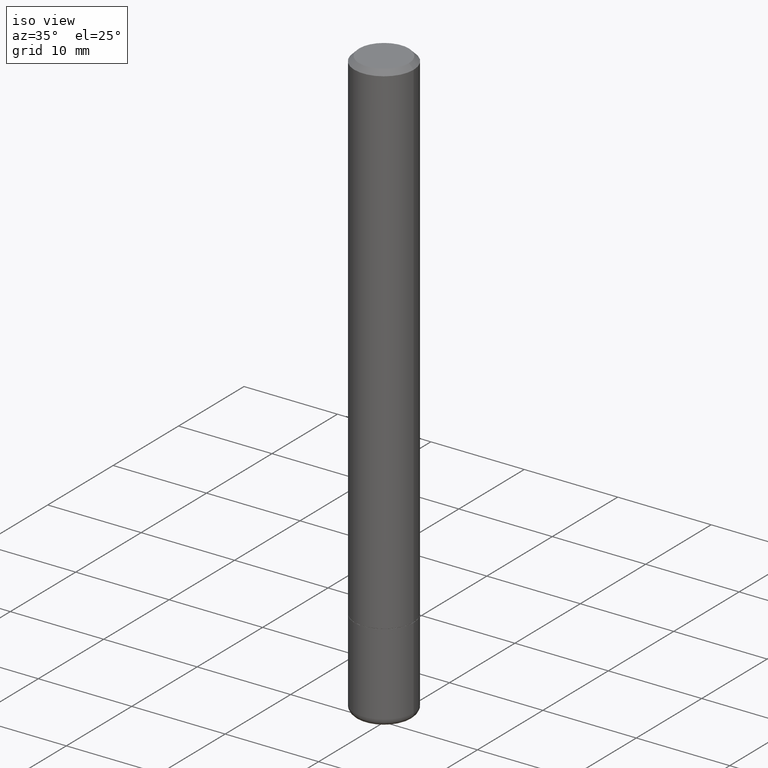
[diagram: clean part render]
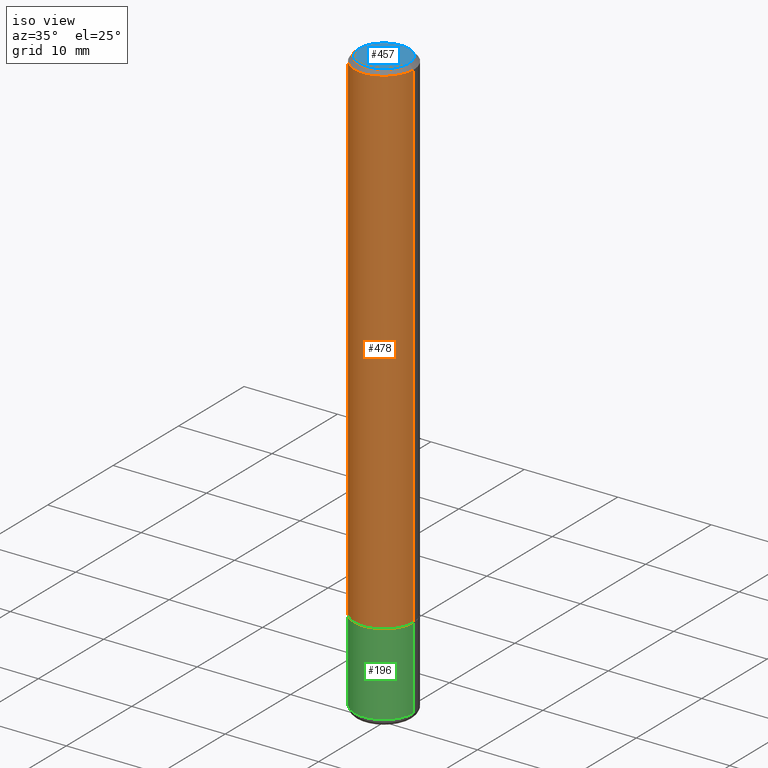
[diagram: same view with three faces highlighted in distinct colors, each labeled with its STEP entity id]
A machine part, iso view with three faces highlighted in distinct colors.
Their STEP definitions:

[orange] entity #478 — the highlighted cylindrical surface (edge-blend (fillet) strip) has radius 3.175 mm, axis along (-0, 0, 1).
#49 = CIRCLE ( 'NONE', #230, 0.1249999999999992090 ) ;
#93 = CYLINDRICAL_SURFACE ( 'NONE', #198, 0.1249999999999993477 ) ;
#103 = EDGE_CURVE ( 'NONE', #464, #153, #475, .T. ) ;
#133 = CARTESIAN_POINT ( 'NONE',  ( 0.000000000000000000, 0.000000000000000000, 0.000000000000000000 ) ) ;
#148 = ORIENTED_EDGE ( 'NONE', *, *, #380, .F. ) ;
#149 = ORIENTED_EDGE ( 'NONE', *, *, #103, .T. ) ;
#153 = VERTEX_POINT ( 'NONE', #235 ) ;
#154 = DIRECTION ( 'NONE',  ( -2.445468806185136597E-29, 3.491481338843145583E-15, 1.000000000000000000 ) ) ;
#161 = CARTESIAN_POINT ( 'NONE',  ( 4.890937612370296805E-31, -6.982962677686323656E-17, -0.02000000000000009409 ) ) ;
#172 = DIRECTION ( 'NONE',  ( 1.000000000000000000, -6.982962677686265922E-15, 4.876176775795935793E-29 ) ) ;
#173 = CARTESIAN_POINT ( 'NONE',  ( 0.1249999999999992090, -9.273918764982992215E-16, -0.02000000000000009409 ) ) ;
#198 = AXIS2_PLACEMENT_3D ( 'NONE', #133, #358, #172 ) ;
#207 = VECTOR ( 'NONE', #432, 39.37007874015748143 ) ;
#221 = EDGE_CURVE ( 'NONE', #312, #369, #49, .T. ) ;
#230 = AXIS2_PLACEMENT_3D ( 'NONE', #161, #241, #311 ) ;
#235 = CARTESIAN_POINT ( 'NONE',  ( 0.1249999999999994865, -8.288776698413622377E-15, -2.124000000000000110 ) ) ;
#241 = DIRECTION ( 'NONE',  ( -2.445468806185136597E-29, 3.491481338843145583E-15, 1.000000000000000000 ) ) ;
#269 = EDGE_CURVE ( 'NONE', #153, #369, #392, .T. ) ;
#285 = CARTESIAN_POINT ( 'NONE',  ( 0.1249999999999993477, -8.728703347107787043E-16, 6.095220969744888212E-30 ) ) ;
#292 = CARTESIAN_POINT ( 'NONE',  ( -0.1249999999999994865, -2.854689575539726725E-15, -2.124000000000000110 ) ) ;
#311 = DIRECTION ( 'NONE',  ( 1.000000000000000000, -6.982962677686267499E-15, 0.000000000000000000 ) ) ;
#312 = VERTEX_POINT ( 'NONE', #463 ) ;
#327 = EDGE_LOOP ( 'NONE', ( #148, #149, #486, #444 ) ) ;
#336 = LINE ( 'NONE', #482, #489 ) ;
#347 = DIRECTION ( 'NONE',  ( 1.000000000000000000, -6.982962677686268288E-15, 0.000000000000000000 ) ) ;
#358 = DIRECTION ( 'NONE',  ( -2.445468806185136597E-29, 3.491481338843145583E-15, 1.000000000000000000 ) ) ;
#369 = VERTEX_POINT ( 'NONE', #173 ) ;
#371 = CARTESIAN_POINT ( 'NONE',  ( 5.194175744337230786E-29, -7.415906363702842194E-15, -2.124000000000000110 ) ) ;
#380 = EDGE_CURVE ( 'NONE', #464, #312, #336, .T. ) ;
#392 = LINE ( 'NONE', #285, #207 ) ;
#399 = FACE_OUTER_BOUND ( 'NONE', #327, .T. ) ;
#413 = AXIS2_PLACEMENT_3D ( 'NONE', #371, #154, #347 ) ;
#432 = DIRECTION ( 'NONE',  ( -2.445468806185136877E-29, 3.491481338843145188E-15, 1.000000000000000000 ) ) ;
#444 = ORIENTED_EDGE ( 'NONE', *, *, #221, .F. ) ;
#463 = CARTESIAN_POINT ( 'NONE',  ( -0.1249999999999992090, 8.030407079339147158E-16, -0.02000000000000009409 ) ) ;
#464 = VERTEX_POINT ( 'NONE', #292 ) ;
#474 = DIRECTION ( 'NONE',  ( -2.445468806185136877E-29, 3.491481338843145188E-15, 1.000000000000000000 ) ) ;
#475 = CIRCLE ( 'NONE', #413, 0.1249999999999994865 ) ;
#478 = ADVANCED_FACE ( 'NONE', ( #399 ), #93, .T. ) ;
#482 = CARTESIAN_POINT ( 'NONE',  ( -0.1249999999999993477, 8.881784197001205978E-16, -6.148668862818600698E-30 ) ) ;
#486 = ORIENTED_EDGE ( 'NONE', *, *, #269, .T. ) ;
#489 = VECTOR ( 'NONE', #474, 39.37007874015748143 ) ;

[blue] entity #457 — the highlighted planar face has unit normal (0, -0, -1).
#30 = DIRECTION ( 'NONE',  ( -1.000000000000000000, 6.982962677686265922E-15, -4.876176775795935793E-29 ) ) ;
#33 = CARTESIAN_POINT ( 'NONE',  ( 1.148236555768741665E-45, -1.639377487418492057E-31, -4.695363739110452099E-17 ) ) ;
#46 = VERTEX_POINT ( 'NONE', #119 ) ;
#51 = DIRECTION ( 'NONE',  ( -2.445468806185136597E-29, 3.491481338843145583E-15, 1.000000000000000000 ) ) ;
#57 = CARTESIAN_POINT ( 'NONE',  ( 1.148236555768741665E-45, -1.639377487418492057E-31, -4.695363739110452099E-17 ) ) ;
#108 = VERTEX_POINT ( 'NONE', #310 ) ;
#119 = CARTESIAN_POINT ( 'NONE',  ( 0.1049999999999992190, -8.238720831321523396E-16, -4.695363739109907908E-17 ) ) ;
#121 = AXIS2_PLACEMENT_3D ( 'NONE', #57, #51, #244 ) ;
#139 = CARTESIAN_POINT ( 'NONE',  ( 7.332110811570524037E-16, 0.1049999999999992190, -3.900823592740798305E-16 ) ) ;
#140 = DIRECTION ( 'NONE',  ( 1.000000000000000000, -6.982962677686267499E-15, 4.874400871621274649E-29 ) ) ;
#189 = EDGE_CURVE ( 'NONE', #108, #46, #192, .T. ) ;
#192 = CIRCLE ( 'NONE', #121, 0.1049999999999992190 ) ;
#218 = EDGE_LOOP ( 'NONE', ( #314, #265 ) ) ;
#244 = DIRECTION ( 'NONE',  ( 1.000000000000000000, -6.982962677686267499E-15, 4.874400871621274649E-29 ) ) ;
#252 = DIRECTION ( 'NONE',  ( -2.445468806185136597E-29, 3.491481338843145583E-15, 1.000000000000000000 ) ) ;
#265 = ORIENTED_EDGE ( 'NONE', *, *, #408, .T. ) ;
#290 = AXIS2_PLACEMENT_3D ( 'NONE', #139, #447, #30 ) ;
#296 = FACE_OUTER_BOUND ( 'NONE', #218, .T. ) ;
#305 = AXIS2_PLACEMENT_3D ( 'NONE', #33, #252, #140 ) ;
#310 = CARTESIAN_POINT ( 'NONE',  ( -0.1049999999999992190, 7.681258945454834611E-16, -4.695363739110977184E-17 ) ) ;
#314 = ORIENTED_EDGE ( 'NONE', *, *, #189, .T. ) ;
#331 = PLANE ( 'NONE',  #290 ) ;
#408 = EDGE_CURVE ( 'NONE', #46, #108, #459, .T. ) ;
#447 = DIRECTION ( 'NONE',  ( 2.438088387897960049E-29, -3.491481338843145188E-15, -1.000000000000000000 ) ) ;
#457 = ADVANCED_FACE ( 'NONE', ( #296 ), #331, .F. ) ;
#459 = CIRCLE ( 'NONE', #305, 0.1049999999999992190 ) ;

[green] entity #196 — the highlighted cylindrical surface (edge-blend (fillet) strip) has radius 3.175 mm, axis along (-0, 0, 1).
#10 = EDGE_CURVE ( 'NONE', #141, #55, #275, .T. ) ;
#14 = ORIENTED_EDGE ( 'NONE', *, *, #78, .F. ) ;
#24 = CARTESIAN_POINT ( 'NONE',  ( 0.000000000000000000, 0.000000000000000000, 0.000000000000000000 ) ) ;
#28 = VERTEX_POINT ( 'NONE', #307 ) ;
#50 = AXIS2_PLACEMENT_3D ( 'NONE', #273, #197, #348 ) ;
#55 = VERTEX_POINT ( 'NONE', #85 ) ;
#60 = EDGE_CURVE ( 'NONE', #141, #398, #111, .T. ) ;
#78 = EDGE_CURVE ( 'NONE', #55, #28, #284, .T. ) ;
#85 = CARTESIAN_POINT ( 'NONE',  ( -0.1249999999999995559, -7.133501950465667053E-15, -2.125000000000000000 ) ) ;
#99 = CARTESIAN_POINT ( 'NONE',  ( 0.1249999999999997918, -8.728703347107818597E-16, 6.095220969744909231E-30 ) ) ;
#111 = CIRCLE ( 'NONE', #50, 0.1250000000000000278 ) ;
#130 = DIRECTION ( 'NONE',  ( -2.445468806185136597E-29, 3.491481338843145583E-15, 1.000000000000000000 ) ) ;
#141 = VERTEX_POINT ( 'NONE', #456 ) ;
#155 = CARTESIAN_POINT ( 'NONE',  ( 5.196621213143415268E-29, -7.419397845041685201E-15, -2.125000000000000000 ) ) ;
#158 = DIRECTION ( 'NONE',  ( -2.445468806185136597E-29, 3.491481338843145583E-15, 1.000000000000000000 ) ) ;
#183 = ORIENTED_EDGE ( 'NONE', *, *, #210, .T. ) ;
#187 = AXIS2_PLACEMENT_3D ( 'NONE', #24, #130, #325 ) ;
#191 = DIRECTION ( 'NONE',  ( -2.445468806185136877E-29, 3.491481338843145188E-15, 1.000000000000000000 ) ) ;
#196 = ADVANCED_FACE ( 'NONE', ( #205 ), #360, .T. ) ;
#197 = DIRECTION ( 'NONE',  ( -2.445468806185136597E-29, 3.491481338843145583E-15, 1.000000000000000000 ) ) ;
#205 = FACE_OUTER_BOUND ( 'NONE', #259, .T. ) ;
#210 = EDGE_CURVE ( 'NONE', #398, #28, #462, .T. ) ;
#225 = VECTOR ( 'NONE', #356, 39.37007874015748143 ) ;
#259 = EDGE_LOOP ( 'NONE', ( #446, #282, #183, #14 ) ) ;
#273 = CARTESIAN_POINT ( 'NONE',  ( 6.040310744756052718E-29, -8.623962895289896214E-15, -2.470001142308074993 ) ) ;
#275 = LINE ( 'NONE', #454, #361 ) ;
#282 = ORIENTED_EDGE ( 'NONE', *, *, #60, .T. ) ;
#284 = CIRCLE ( 'NONE', #411, 0.1249999999999995559 ) ;
#307 = CARTESIAN_POINT ( 'NONE',  ( 0.1249999999999995559, -8.292268179752463807E-15, -2.125000000000000000 ) ) ;
#325 = DIRECTION ( 'NONE',  ( 1.000000000000000000, -6.982962677686266711E-15, 4.876176775795935232E-29 ) ) ;
#345 = DIRECTION ( 'NONE',  ( 1.000000000000000000, -6.982962677686264344E-15, 0.000000000000000000 ) ) ;
#348 = DIRECTION ( 'NONE',  ( 1.000000000000000000, -6.982962677686261189E-15, 0.000000000000000000 ) ) ;
#356 = DIRECTION ( 'NONE',  ( -2.445468806185136877E-29, 3.491481338843145188E-15, 1.000000000000000000 ) ) ;
#360 = CYLINDRICAL_SURFACE ( 'NONE', #187, 0.1249999999999997918 ) ;
#361 = VECTOR ( 'NONE', #191, 39.37007874015748143 ) ;
#398 = VERTEX_POINT ( 'NONE', #490 ) ;
#411 = AXIS2_PLACEMENT_3D ( 'NONE', #155, #158, #345 ) ;
#446 = ORIENTED_EDGE ( 'NONE', *, *, #10, .F. ) ;
#454 = CARTESIAN_POINT ( 'NONE',  ( -0.1249999999999997918, 8.881784197001237532E-16, -6.148668862818622418E-30 ) ) ;
#456 = CARTESIAN_POINT ( 'NONE',  ( -0.1250000000000000555, -7.133501950465663898E-15, -2.470001142308074993 ) ) ;
#462 = LINE ( 'NONE', #99, #225 ) ;
#490 = CARTESIAN_POINT ( 'NONE',  ( 0.1250000000000000278, -9.496833230000679553E-15, -2.470001142308074993 ) ) ;